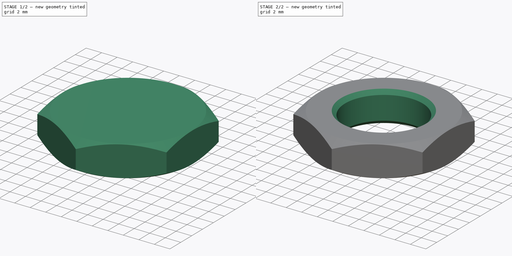
[diagram: build sequence overview — one tinted view per stage of 2, left to right]
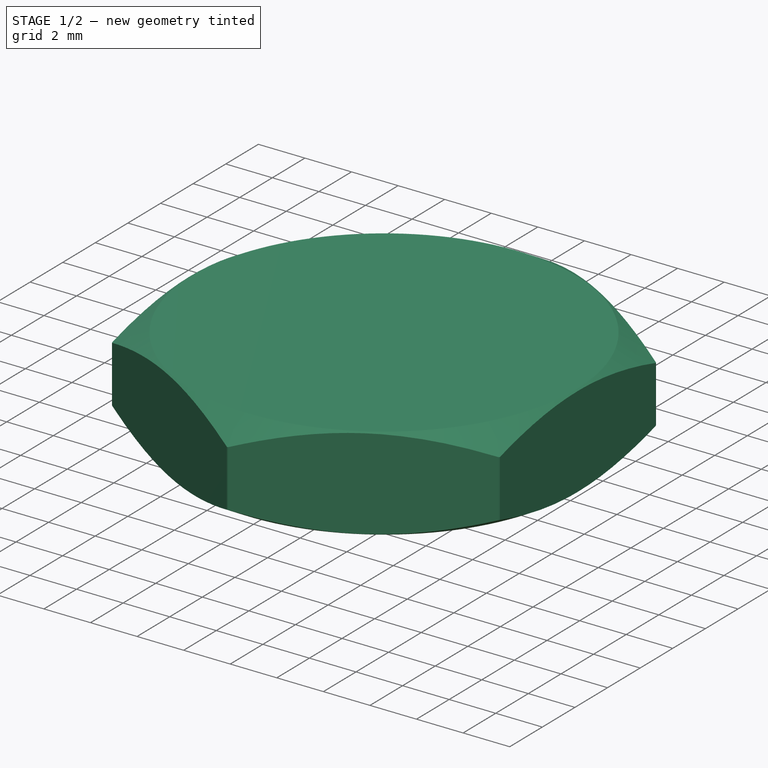
[diagram: stage 1 of 2 — iso view after this stage's code; geometry added in this stage tinted green]
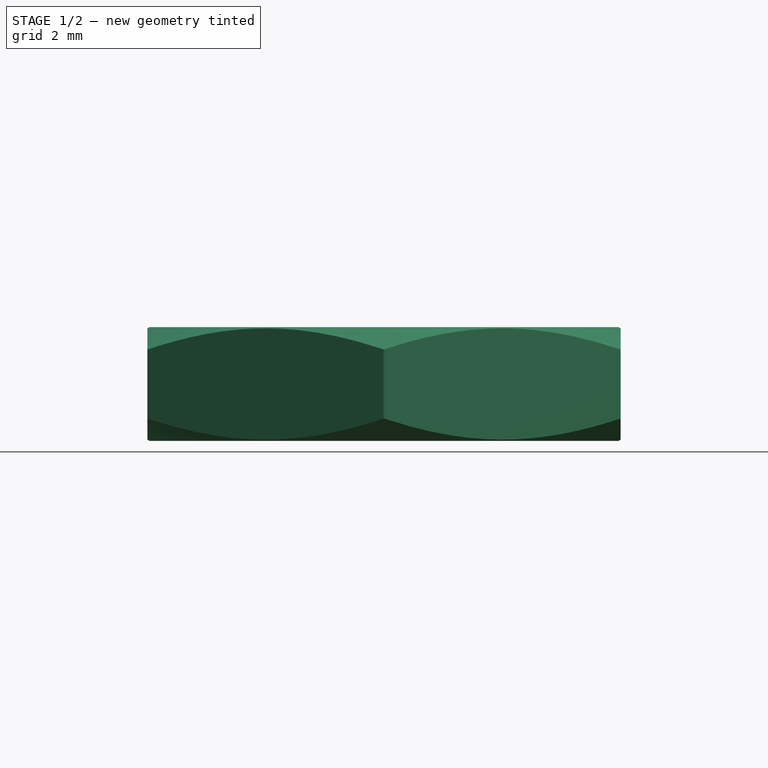
[diagram: stage 1 of 2 — front view after this stage's code; geometry added in this stage tinted green]
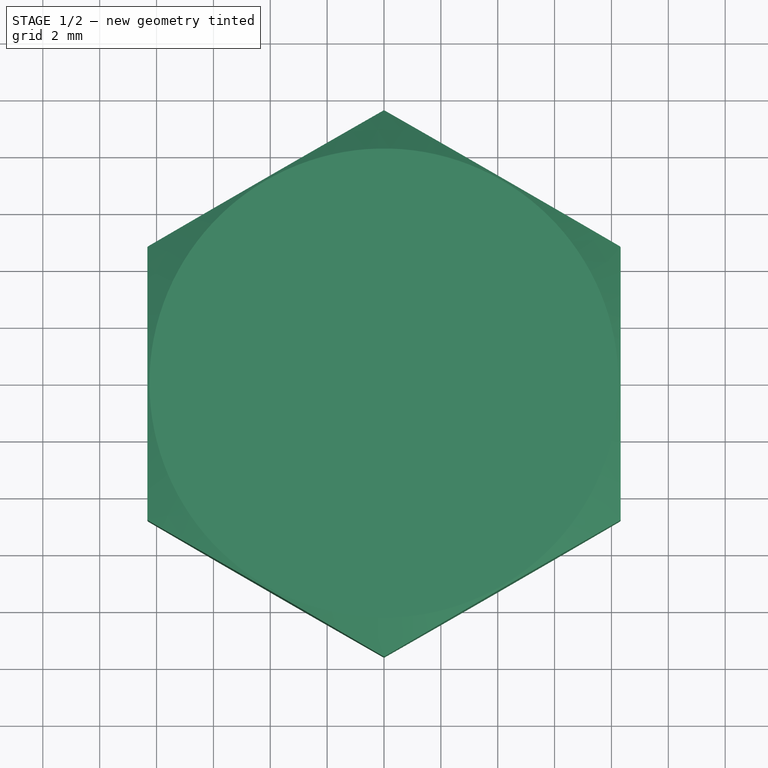
[diagram: stage 1 of 2 — top view after this stage's code; geometry added in this stage tinted green]
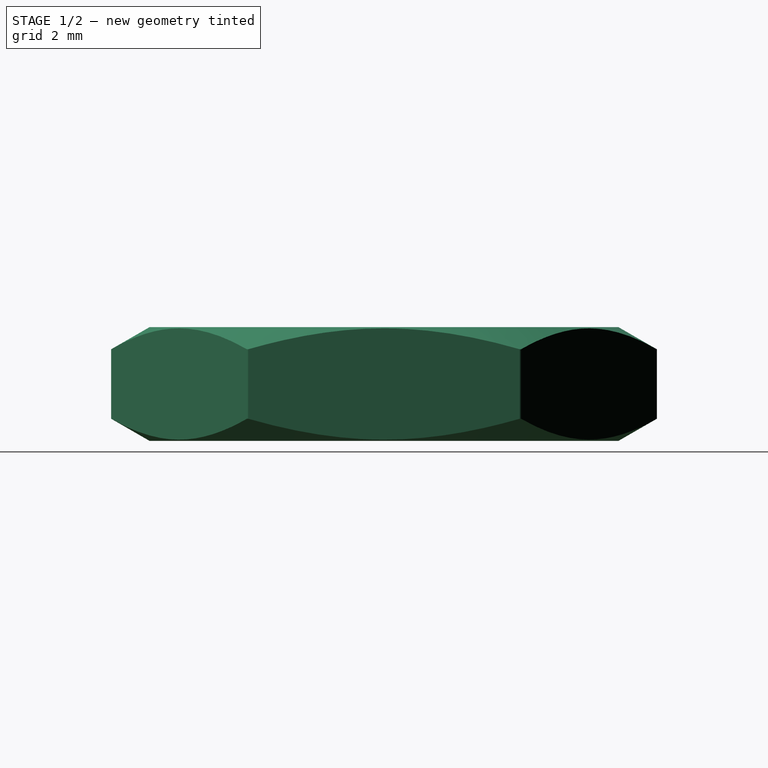
[diagram: stage 1 of 2 — right view after this stage's code; geometry added in this stage tinted green]
FCSTD DOCUMENT  (FreeCAD 0.15R4671 (Git))
Label: Thin 12x1 Hex Nut
License: CC-BY 3.0
LicenseURL: http://creativecommons.org/licenses/by/3.0/
objects: Sketcher::SketchObject×3, PartDesign::Pocket×2, PartDesign::Revolution×1, PartDesign::Chamfer×1
note: 10 computed .brp shape members not serialized (recipe doc carries the construction recipe); baked Part::Feature solids carry a one-line shape summary decoded from their .brp

FEATURE [Sketcher::SketchObject] Sketch
  Placement = pos=(0,0,0) rot=(1,0,0;1.5708rad)
  sketch-geometry (6):
    g0: LineSegment StartX=0 StartY=4 StartZ=0 EndX=8.25 EndY=4 EndZ=0
    g1: LineSegment StartX=8.25 StartY=4 StartZ=0 EndX=9.6 EndY=3.22058 EndZ=0
    g2: LineSegment StartX=9.6 StartY=0.779423 StartZ=0 EndX=8.25 EndY=0 EndZ=0
    g3: LineSegment StartX=8.25 StartY=0 StartZ=0 EndX=0 EndY=0 EndZ=0
    g4: LineSegment StartX=0 StartY=0 StartZ=0 EndX=0 EndY=4 EndZ=0
    g5: LineSegment StartX=9.6 StartY=3.22058 StartZ=0 EndX=9.6 EndY=0.779423 EndZ=0
  constraints (17):
    c: Horizontal(g0)
    c: Coincident(g0,g1)
    c: Coincident(g2,g3)
    c: Horizontal(g3)
    c: Coincident(g3,g4)
    c: Coincident(g4,g0)
    c: DistanceY(g4) = 4
    c: Vertical(g4)
    c: Coincident(g3,g-1)
    c: Equal(g2,g1)
    c: Angle(g2,g-1) = 2.61799
    c: Equal(g0,g3)
    c: DistanceX(g3) = -8.25
    c: DistanceX(g2) = 9.6
    c: Angle(g0,g1) = 2.61799
    c: Coincident(g5,g1)
    c: Coincident(g2,g5)
FEATURE [PartDesign::Revolution] Revolution
  Angle = 360
  Axis = (0,0,1)
  Base = (0,0,0)
  Placement = pos=(0,0,0) rot=(1,0,0;1.5708rad)
  ReferenceAxis = -> Sketch [V_Axis]
  Sketch = -> Sketch
FEATURE [Sketcher::SketchObject] Sketch001  label="Hexagon"
  Placement = pos=(0,0,4) rot=(0,0,1;3.14159rad)
  Support = -> Revolution [Face1]
  sketch-geometry (9):
    g0: LineSegment StartX=-8.325 StartY=4.80644 StartZ=0 EndX=0 EndY=9.61288 EndZ=0
    g1: LineSegment StartX=0 StartY=9.61288 StartZ=0 EndX=8.325 EndY=4.80644 EndZ=0
    g2: LineSegment StartX=8.325 StartY=4.80644 StartZ=0 EndX=8.325 EndY=-4.80644 EndZ=0
    g3: LineSegment StartX=8.325 StartY=-4.80644 StartZ=0 EndX=0 EndY=-9.61288 EndZ=0
    g4: LineSegment StartX=0 StartY=-9.61288 StartZ=0 EndX=-8.325 EndY=-4.80644 EndZ=0
    g5: LineSegment StartX=-8.325 StartY=-4.80644 StartZ=0 EndX=-8.325 EndY=4.80644 EndZ=0
    g6: Circle [constr] CenterX=0 CenterY=0 CenterZ=0 NormalX=0 NormalY=0 NormalZ=1 Radius=9.61288
    g7: Circle CenterX=0 CenterY=0 CenterZ=0 NormalX=0 NormalY=0 NormalZ=1 Radius=10.6129
    g8: LineSegment [constr] StartX=0 StartY=10.6129 StartZ=0 EndX=0 EndY=9.61288 EndZ=0
  constraints (26):
    c: Coincident(g0,g1)
    c: Coincident(g1,g2)
    c: Coincident(g2,g3)
    c: Coincident(g3,g4)
    c: Coincident(g4,g5)
    c: Coincident(g5,g0)
    c: Equal(g5,g0)
    c: Equal(g0,g4)
    c: Equal(g4,g3)
    c: Equal(g3,g2)
    c: Equal(g2,g1)
    c: PointOnObject(g0,g6)
    c: PointOnObject(g2,g6)
    c: PointOnObject(g1,g6)
    c: PointOnObject(g4,g6)
    c: PointOnObject(g0,g6)
    c: Coincident(g6,g-1)
    c: Vertical(g5)
    c: Vertical(g2)
    c: DistanceX(g0,g1) = 16.65
    c: Coincident(g7,g-1)
    c: PointOnObject(g8,g6)
    c: Vertical(g8)
    c: PointOnObject(g8,g7)
    c: PointOnObject(g8,g-2)
    c: DistanceY(g8) = -1
FEATURE [PartDesign::Pocket] Pocket
  Length = 5
  Placement = pos=(0,0,0) rot=(1,0,0;1.5708rad)
  Sketch = -> Sketch001
  Type = 1
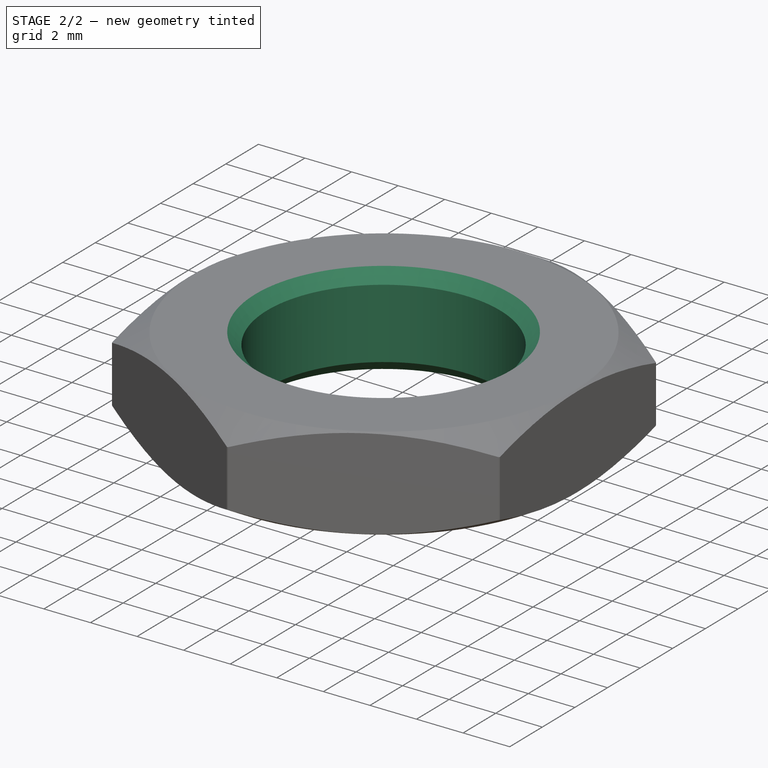
[diagram: stage 2 of 2 — iso view after this stage's code; geometry added in this stage tinted green]
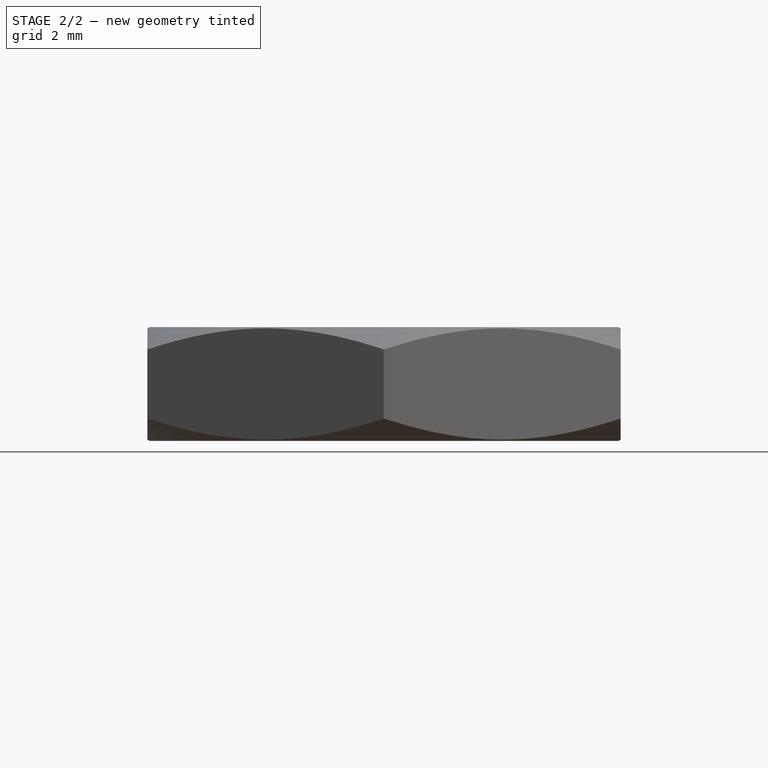
[diagram: stage 2 of 2 — front view after this stage's code; geometry added in this stage tinted green]
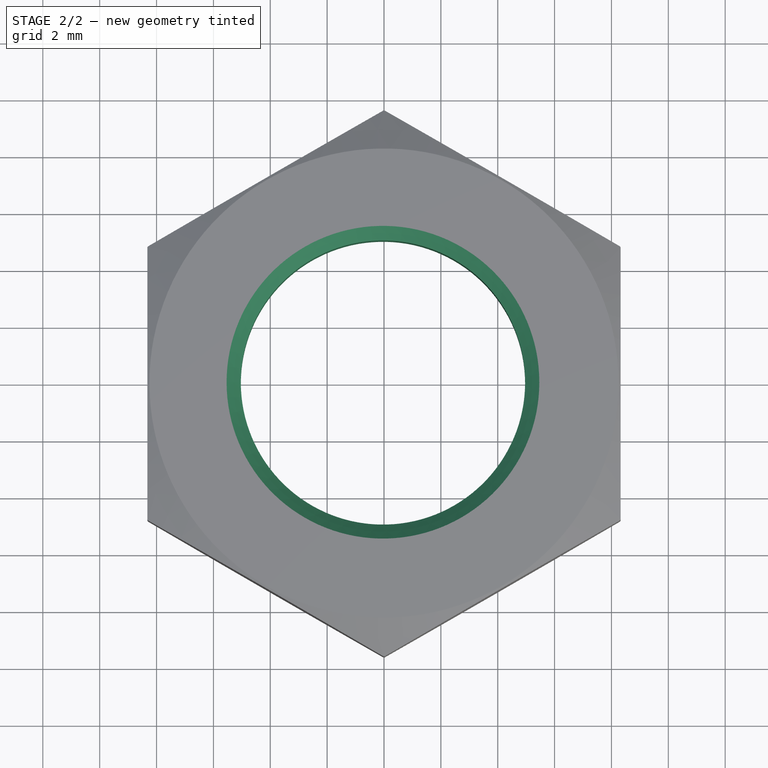
[diagram: stage 2 of 2 — top view after this stage's code; geometry added in this stage tinted green]
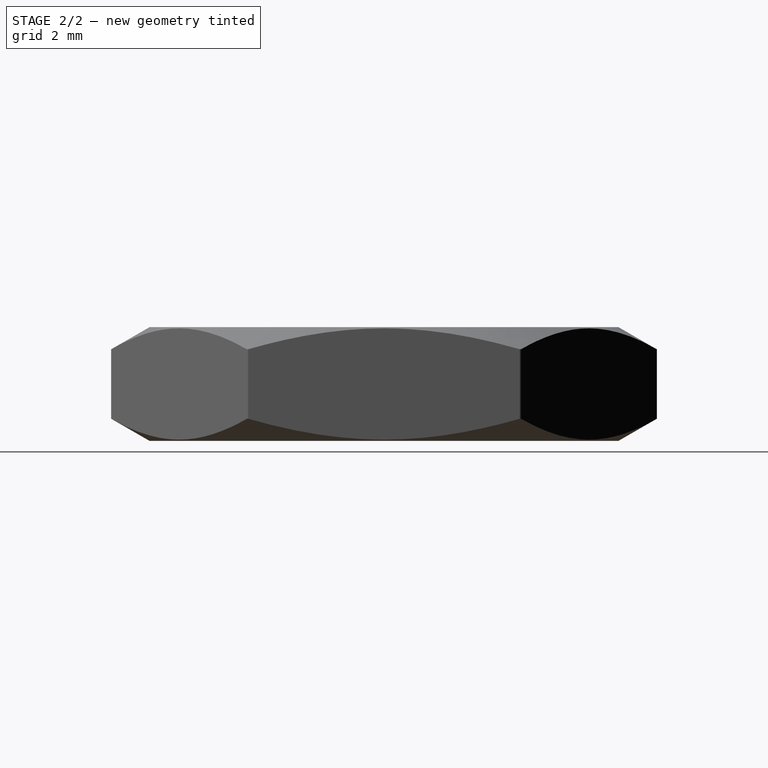
[diagram: stage 2 of 2 — right view after this stage's code; geometry added in this stage tinted green]
FEATURE [Sketcher::SketchObject] Sketch002
  Placement = pos=(0,0,4) rot=(0,0,1;3.14159rad)
  Support = -> Pocket [Face1]
  sketch-geometry (1):
    g0: Circle CenterX=0.036806 CenterY=-0.027604 CenterZ=0 NormalX=0 NormalY=0 NormalZ=1 Radius=5
  constraints (1):
    c: Radius(g0) = 5
FEATURE [PartDesign::Pocket] Pocket001
  Length = 5
  Placement = pos=(0,0,0) rot=(1,0,0;1.5708rad)
  Sketch = -> Sketch002
  Type = 1
FEATURE [PartDesign::Chamfer] Chamfer
  Base = -> Pocket001 [Edge2,Edge18]
  Placement = pos=(0,0,0) rot=(1,0,0;1.5708rad)
  Size = 0.5
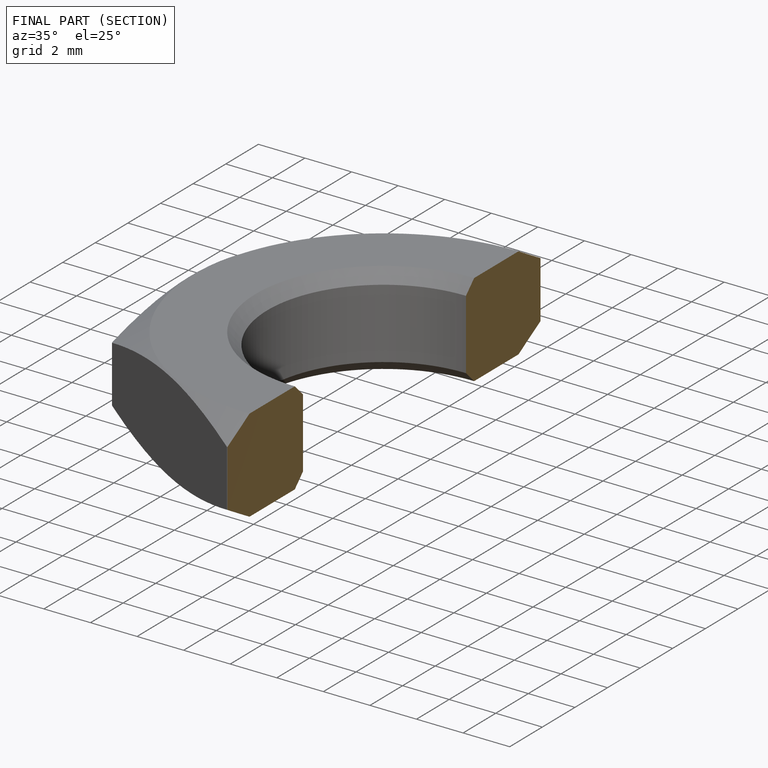
[diagram: finished part — half-section view (interior)]
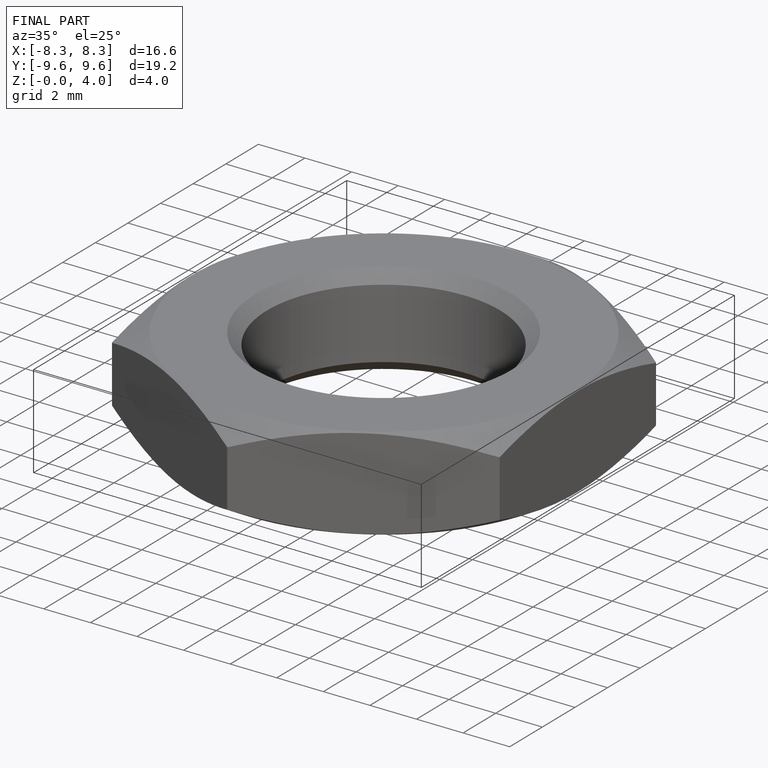
[diagram: finished part — iso view with bounding-box wireframe]
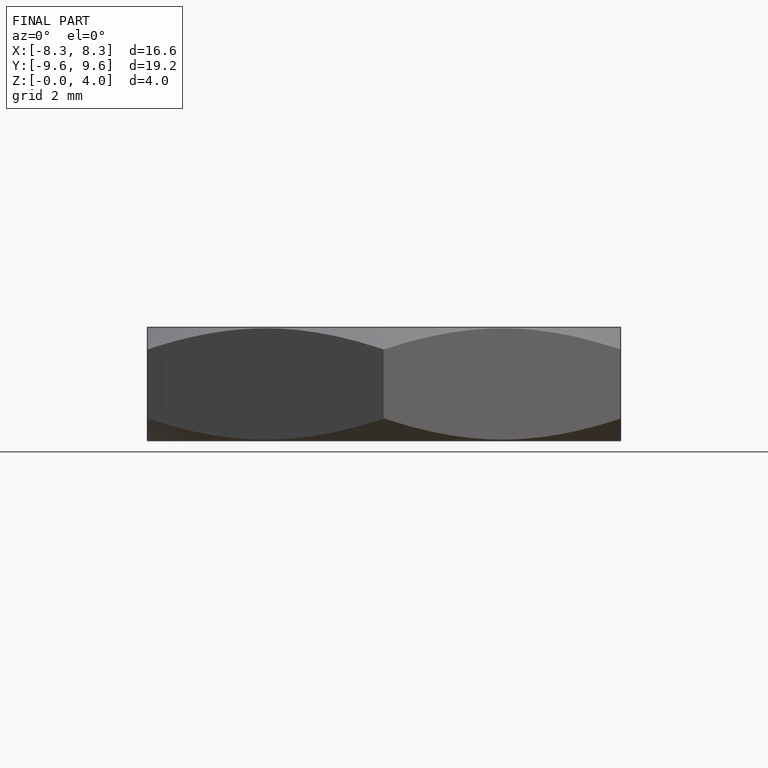
[diagram: finished part — front view with bounding-box wireframe]
